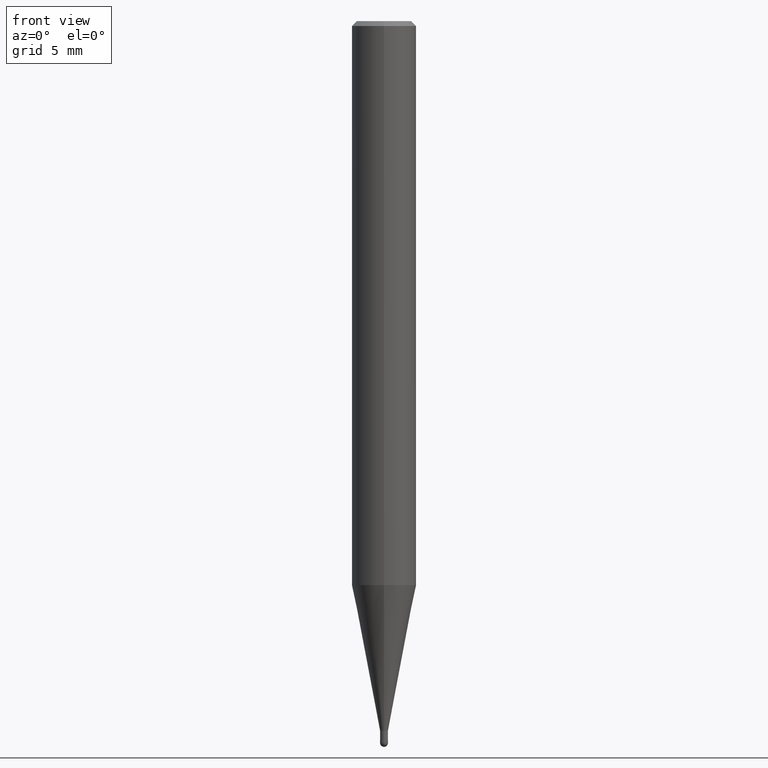
[diagram: clean part render]
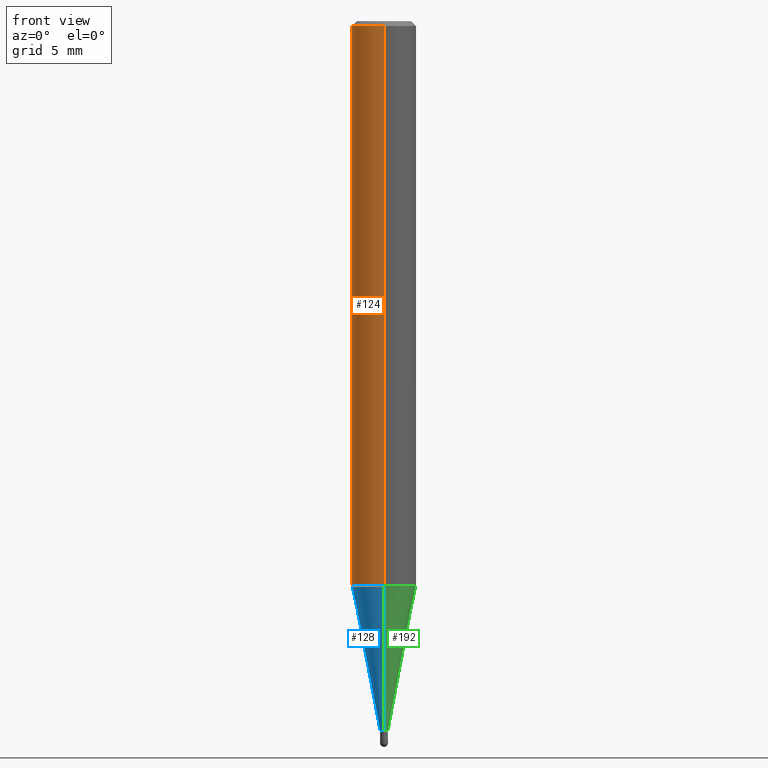
[diagram: same view with three faces highlighted in distinct colors, each labeled with its STEP entity id]
A machine part, front view with three faces highlighted in distinct colors.
Their STEP definitions:

[orange] entity #124 — the highlighted cylindrical surface (edge-blend (fillet) strip) has radius 2 mm, axis along (-0, -0, 1).
#100=EDGE_CURVE('',#208,#188,#241,.T.);
#102=EDGE_CURVE('',#214,#158,#243,.T.);
#124=ADVANCED_FACE('',(#267),#268,.T.);
#158=VERTEX_POINT('',#305);
#188=VERTEX_POINT('',#342);
#196=EDGE_CURVE('',#188,#158,#353,.T.);
#208=VERTEX_POINT('',#366);
#212=EDGE_CURVE('',#214,#208,#370,.T.);
#214=VERTEX_POINT('',#372);
#241=CIRCLE('',#394,2.0);
#243=CIRCLE('',#397,2.0);
#267=FACE_OUTER_BOUND('',#430,.T.);
#268=CYLINDRICAL_SURFACE('',#431,2.0);
#305=CARTESIAN_POINT('',(0.0,2.0,-34.971));
#342=CARTESIAN_POINT('',(0.0,2.0,-0.299999999999997));
#353=LINE('',#531,#532);
#366=CARTESIAN_POINT('',(2.44921270764475E-016,-2.0,-0.299999999999997));
#370=LINE('',#554,#555);
#372=CARTESIAN_POINT('',(2.44921270764475E-016,-2.0,-34.971));
#394=AXIS2_PLACEMENT_3D('',#560,#561,#562);
#397=AXIS2_PLACEMENT_3D('',#563,#564,#565);
#430=EDGE_LOOP('',(#598,#599,#600,#601));
#431=AXIS2_PLACEMENT_3D('',#602,#603,#604);
#531=CARTESIAN_POINT('',(-2.44921270764475E-016,2.0,-17.6355));
#532=VECTOR('',#725,1.0);
#554=CARTESIAN_POINT('',(2.44921270764475E-016,-2.0,-17.6355));
#555=VECTOR('',#739,1.0);
#560=CARTESIAN_POINT('',(0.0,0.0,-0.299999999999997));
#561=DIRECTION('',(0.0,0.0,-1.0));
#562=DIRECTION('',(0.0,1.0,0.0));
#563=CARTESIAN_POINT('',(0.0,0.0,-34.971));
#564=DIRECTION('',(0.0,0.0,-1.0));
#565=DIRECTION('',(0.0,1.0,0.0));
#598=ORIENTED_EDGE('',*,*,#196,.T.);
#599=ORIENTED_EDGE('',*,*,#102,.F.);
#600=ORIENTED_EDGE('',*,*,#212,.T.);
#601=ORIENTED_EDGE('',*,*,#100,.T.);
#602=CARTESIAN_POINT('',(0.0,0.0,-17.6355));
#603=DIRECTION('',(-0.0,-0.0,1.0));
#604=DIRECTION('',(0.0,1.0,0.0));
#725=DIRECTION('',(0.0,0.0,-1.0));
#739=DIRECTION('',(-0.0,-0.0,1.0));

[blue] entity #128 — the highlighted conical surface has half-angle 11 deg.
#104=EDGE_CURVE('',#132,#112,#245,.T.);
#112=VERTEX_POINT('',#255);
#118=EDGE_CURVE('',#148,#132,#261,.T.);
#128=ADVANCED_FACE('',(#272),#273,.T.);
#132=VERTEX_POINT('',#277);
#144=EDGE_CURVE('',#166,#112,#289,.T.);
#148=VERTEX_POINT('',#293);
#156=EDGE_CURVE('',#166,#148,#303,.T.);
#166=VERTEX_POINT('',#314);
#245=LINE('',#400,#401);
#255=CARTESIAN_POINT('',(0.0,0.24495,-44.0));
#261=CIRCLE('',#422,1.99995);
#272=FACE_OUTER_BOUND('',#435,.T.);
#273=CONICAL_SURFACE('',#436,1.12245,0.191979834546789);
#277=CARTESIAN_POINT('',(0.0,1.99995,-34.971));
#289=CIRCLE('',#458,0.24495);
#293=CARTESIAN_POINT('',(2.44915147732706E-016,-1.99995,-34.971));
#303=LINE('',#474,#475);
#314=CARTESIAN_POINT('',(2.99967326368791E-017,-0.24495,-44.0));
#400=CARTESIAN_POINT('',(-1.37455940184793E-016,1.12245,-39.4855));
#401=VECTOR('',#566,1.0);
#422=AXIS2_PLACEMENT_3D('',#588,#589,#590);
#435=EDGE_LOOP('',(#606,#607,#608,#609));
#436=AXIS2_PLACEMENT_3D('',#610,#611,#612);
#458=AXIS2_PLACEMENT_3D('',#627,#628,#629);
#474=CARTESIAN_POINT('',(1.37455940184793E-016,-1.12245,-39.4855));
#475=VECTOR('',#645,1.0);
#566=DIRECTION('',(2.336582348441E-017,-0.19080272947693,-0.981628401394414));
#588=CARTESIAN_POINT('',(0.0,0.0,-34.971));
#589=DIRECTION('',(0.0,0.0,-1.0));
#590=DIRECTION('',(0.0,1.0,0.0));
#606=ORIENTED_EDGE('',*,*,#104,.T.);
#607=ORIENTED_EDGE('',*,*,#144,.F.);
#608=ORIENTED_EDGE('',*,*,#156,.T.);
#609=ORIENTED_EDGE('',*,*,#118,.T.);
#610=CARTESIAN_POINT('',(0.0,0.0,-39.4855));
#611=DIRECTION('',(-0.0,-0.0,1.0));
#612=DIRECTION('',(0.0,1.0,0.0));
#627=CARTESIAN_POINT('',(0.0,0.0,-44.0));
#628=DIRECTION('',(0.0,0.0,-1.0));
#629=DIRECTION('',(0.0,1.0,0.0));
#645=DIRECTION('',(2.336582348441E-017,-0.19080272947693,0.981628401394414));

[green] entity #192 — the highlighted conical surface has half-angle 11 deg.
#104=EDGE_CURVE('',#132,#112,#245,.T.);
#112=VERTEX_POINT('',#255);
#114=EDGE_CURVE('',#132,#148,#257,.T.);
#122=EDGE_CURVE('',#112,#166,#265,.T.);
#132=VERTEX_POINT('',#277);
#148=VERTEX_POINT('',#293);
#156=EDGE_CURVE('',#166,#148,#303,.T.);
#166=VERTEX_POINT('',#314);
#192=ADVANCED_FACE('',(#347),#348,.T.);
#245=LINE('',#400,#401);
#255=CARTESIAN_POINT('',(0.0,0.24495,-44.0));
#257=CIRCLE('',#415,1.99995);
#265=CIRCLE('',#428,0.24495);
#277=CARTESIAN_POINT('',(0.0,1.99995,-34.971));
#293=CARTESIAN_POINT('',(2.44915147732706E-016,-1.99995,-34.971));
#303=LINE('',#474,#475);
#314=CARTESIAN_POINT('',(2.99967326368791E-017,-0.24495,-44.0));
#347=FACE_OUTER_BOUND('',#524,.T.);
#348=CONICAL_SURFACE('',#525,1.12245,0.191979834546789);
#400=CARTESIAN_POINT('',(-1.37455940184793E-016,1.12245,-39.4855));
#401=VECTOR('',#566,1.0);
#415=AXIS2_PLACEMENT_3D('',#584,#585,#586);
#428=AXIS2_PLACEMENT_3D('',#594,#595,#596);
#474=CARTESIAN_POINT('',(1.37455940184793E-016,-1.12245,-39.4855));
#475=VECTOR('',#645,1.0);
#524=EDGE_LOOP('',(#710,#711,#712,#713));
#525=AXIS2_PLACEMENT_3D('',#714,#715,#716);
#566=DIRECTION('',(2.336582348441E-017,-0.19080272947693,-0.981628401394414));
#584=CARTESIAN_POINT('',(0.0,0.0,-34.971));
#585=DIRECTION('',(0.0,0.0,-1.0));
#586=DIRECTION('',(0.0,1.0,0.0));
#594=CARTESIAN_POINT('',(0.0,0.0,-44.0));
#595=DIRECTION('',(0.0,0.0,-1.0));
#596=DIRECTION('',(0.0,1.0,0.0));
#645=DIRECTION('',(2.336582348441E-017,-0.19080272947693,0.981628401394414));
#710=ORIENTED_EDGE('',*,*,#104,.F.);
#711=ORIENTED_EDGE('',*,*,#114,.T.);
#712=ORIENTED_EDGE('',*,*,#156,.F.);
#713=ORIENTED_EDGE('',*,*,#122,.F.);
#714=CARTESIAN_POINT('',(0.0,0.0,-39.4855));
#715=DIRECTION('',(-0.0,-0.0,1.0));
#716=DIRECTION('',(0.0,1.0,0.0));